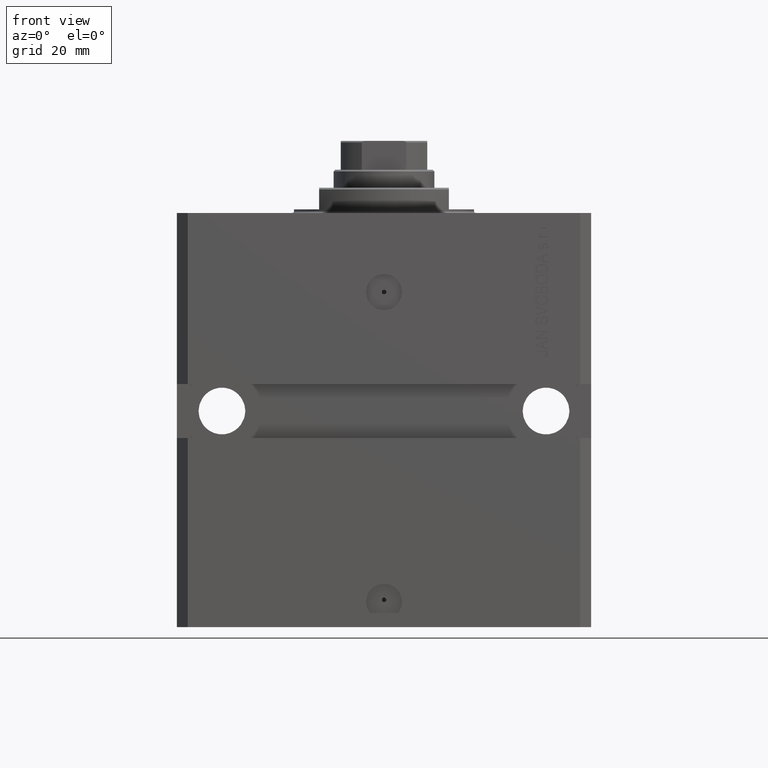
[diagram: clean part render]
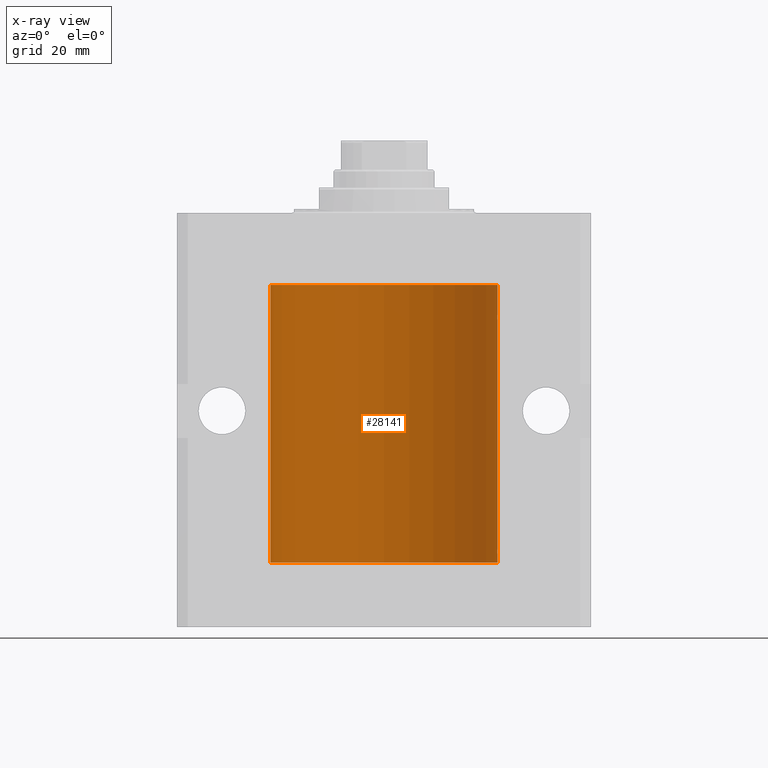
[diagram: x-ray — body ghosted, one internal face saturated and labeled with its STEP entity id]
A machine part, front view, then the same camera in x-ray: the body is ghosted and one INTERNAL B-rep face — a face not visible from any outside direction — is saturated and labeled: STEP entity #28141.
In plain terms, the highlighted cylindrical surface (partial cylindrical patch) has radius 31.5 mm, axis along (0, 0, 1).
Its self-contained STEP definition (entity closure, byte-faithful):
#138 = CARTESIAN_POINT ( 'NONE',  ( 31.49379899281745665, 0.6250000000082825968, -93.99999999999906208 ) ) ;
#686 = CARTESIAN_POINT ( 'NONE',  ( 31.49379899281760231, 0.6250000000003351763, -29.16310352862698352 ) ) ;
#1732 = ORIENTED_EDGE ( 'NONE', *, *, #21806, .T. ) ;
#2864 = CARTESIAN_POINT ( 'NONE',  ( 31.50000000000000000, 0.000000000000000000, -97.09999999999999432 ) ) ;
#3204 = CARTESIAN_POINT ( 'NONE',  ( 31.49379899281760942, 0.6250000000003405054, -94.16310352862701905 ) ) ;
#3294 = DIRECTION ( 'NONE',  ( -0.000000000000000000, -0.000000000000000000, 1.000000000000000000 ) ) ;
#3820 = ORIENTED_EDGE ( 'NONE', *, *, #14156, .F. ) ;
#3973 = VERTEX_POINT ( 'NONE', #38371 ) ;
#4001 = AXIS2_PLACEMENT_3D ( 'NONE', #32444, #36395, #24817 ) ;
#4379 = CARTESIAN_POINT ( 'NONE',  ( 31.49966575203784558, 0.1636755595825546972, -29.60873030821186802 ) ) ;
#5325 = CARTESIAN_POINT ( 'NONE',  ( 31.49379899281762363, 0.6249999999996151967, -28.83697036533062885 ) ) ;
#6488 = CYLINDRICAL_SURFACE ( 'NONE', #19932, 31.50000000000000000 ) ;
#6574 = VERTEX_POINT ( 'NONE', #11835 ) ;
#7714 = CARTESIAN_POINT ( 'NONE',  ( 31.50000000000000000, 0.000000000000000000, -97.09999999999999432 ) ) ;
#7747 = ORIENTED_EDGE ( 'NONE', *, *, #22959, .T. ) ;
#8036 = CARTESIAN_POINT ( 'NONE',  ( 31.49966575203785268, 0.1636755595825563903, -94.60873030821187513 ) ) ;
#9131 = EDGE_CURVE ( 'NONE', #12017, #47261, #31120, .T. ) ;
#11588 = CARTESIAN_POINT ( 'NONE',  ( 31.49379899281745665, 0.6250000000082756024, -28.99999999999905853 ) ) ;
#11835 = CARTESIAN_POINT ( 'NONE',  ( 31.50000000000006395, 3.442404531757459093E-13, -28.37499999999677058 ) ) ;
#12017 = VERTEX_POINT ( 'NONE', #7714 ) ;
#12428 = CARTESIAN_POINT ( 'NONE',  ( 31.49526225382467359, 0.5586305680866429091, -93.67476160622148029 ) ) ;
#12719 = CARTESIAN_POINT ( 'NONE',  ( 31.49527883250257432, 0.5574151849338060405, -29.32638608454755058 ) ) ;
#12945 = CARTESIAN_POINT ( 'NONE',  ( 31.50000000000006395, 3.442404531757459093E-13, -28.37499999999677058 ) ) ;
#14032 = VECTOR ( 'NONE', #41520, 1000.000000000000000 ) ;
#14120 = DIRECTION ( 'NONE',  ( 0.000000000000000000, 0.000000000000000000, 1.000000000000000000 ) ) ;
#14156 = EDGE_CURVE ( 'NONE', #47261, #3973, #15202, .T. ) ;
#14293 = DIRECTION ( 'NONE',  ( -0.000000000000000000, -0.000000000000000000, 1.000000000000000000 ) ) ;
#14607 = CARTESIAN_POINT ( 'NONE',  ( 31.50000000000000000, -1.286676774952591455E-15, -29.62500000000000000 ) ) ;
#14856 = EDGE_CURVE ( 'NONE', #12017, #47184, #15808, .T. ) ;
#14876 = FACE_OUTER_BOUND ( 'NONE', #37887, .T. ) ;
#15202 = LINE ( 'NONE', #30195, #14032 ) ;
#15808 = LINE ( 'NONE', #34517, #26607 ) ;
#16131 = CARTESIAN_POINT ( 'NONE',  ( 31.49379899281762363, 0.6249999999996236344, -93.83697036533062885 ) ) ;
#17955 = EDGE_CURVE ( 'NONE', #38823, #6574, #44016, .T. ) ;
#18178 = VECTOR ( 'NONE', #33638, 1000.000000000000000 ) ;
#18644 = VERTEX_POINT ( 'NONE', #43498 ) ;
#19256 = DIRECTION ( 'NONE',  ( -0.000000000000000000, -0.000000000000000000, 1.000000000000000000 ) ) ;
#19372 = CARTESIAN_POINT ( 'NONE',  ( 31.49851501686590893, 0.3150934959385818801, -94.54594721883859165 ) ) ;
#19932 = AXIS2_PLACEMENT_3D ( 'NONE', #29375, #3294, #47857 ) ;
#20642 = EDGE_CURVE ( 'NONE', #48075, #3973, #29923, .T. ) ;
#21190 = CARTESIAN_POINT ( 'NONE',  ( 31.50000000000000000, 0.000000000000000000, -97.09999999999999432 ) ) ;
#21806 = EDGE_CURVE ( 'NONE', #44051, #38823, #36699, .T. ) ;
#21932 = CARTESIAN_POINT ( 'NONE',  ( 31.50000000000000000, -2.492939093807799249E-15, -94.62500000000000000 ) ) ;
#21967 = EDGE_CURVE ( 'NONE', #18644, #44051, #29686, .T. ) ;
#22959 = EDGE_CURVE ( 'NONE', #48616, #18644, #35418, .T. ) ;
#23276 = CARTESIAN_POINT ( 'NONE',  ( 31.50000000000006395, 3.442404755096224483E-13, -93.37499999999675993 ) ) ;
#24817 = DIRECTION ( 'NONE',  ( 1.000000000000000000, 0.000000000000000000, 0.000000000000000000 ) ) ;
#25015 = ORIENTED_EDGE ( 'NONE', *, *, #9131, .F. ) ;
#26607 = VECTOR ( 'NONE', #19256, 1000.000000000000000 ) ;
#27499 = CARTESIAN_POINT ( 'NONE',  ( 31.49851501686590893, 0.3150934959385772727, -29.54594721883858099 ) ) ;
#28141 = ADVANCED_FACE ( 'NONE', ( #14876 ), #6488, .F. ) ;
#29375 = CARTESIAN_POINT ( 'NONE',  ( 0.000000000000000000, 0.000000000000000000, -97.09999999999999432 ) ) ;
#29394 = CARTESIAN_POINT ( 'NONE',  ( 31.50000000000000000, 0.000000000000000000, -20.00000000000000355 ) ) ;
#29686 = LINE ( 'NONE', #2864, #18178 ) ;
#29923 = CIRCLE ( 'NONE', #4001, 31.50000000000000000 ) ;
#30055 = ORIENTED_EDGE ( 'NONE', *, *, #21967, .T. ) ;
#30181 = ORIENTED_EDGE ( 'NONE', *, *, #17955, .T. ) ;
#30195 = CARTESIAN_POINT ( 'NONE',  ( -31.50000000000000000, 3.857637417314162689E-15, -97.09999999999999432 ) ) ;
#31120 = CIRCLE ( 'NONE', #44491, 31.50000000000000000 ) ;
#32444 = CARTESIAN_POINT ( 'NONE',  ( 0.000000000000000000, 0.000000000000000000, -20.00000000000000355 ) ) ;
#32837 = ORIENTED_EDGE ( 'NONE', *, *, #46815, .T. ) ;
#33091 = CARTESIAN_POINT ( 'NONE',  ( 31.50000000000000000, -2.492939093807799249E-15, -94.62500000000000000 ) ) ;
#33638 = DIRECTION ( 'NONE',  ( -0.000000000000000000, -0.000000000000000000, 1.000000000000000000 ) ) ;
#34143 = CARTESIAN_POINT ( 'NONE',  ( 31.50000000000000000, 0.08261130139621999935, -94.62499999999998579 ) ) ;
#34168 = EDGE_CURVE ( 'NONE', #47184, #48616, #40633, .T. ) ;
#34394 = CARTESIAN_POINT ( 'NONE',  ( 31.49379899281745665, 0.6250000000082825968, -93.99999999999906208 ) ) ;
#34418 = CARTESIAN_POINT ( 'NONE',  ( 31.50000000000000711, 0.08261130139621915280, -29.62499999999999289 ) ) ;
#34478 = VECTOR ( 'NONE', #14293, 1000.000000000000000 ) ;
#34517 = CARTESIAN_POINT ( 'NONE',  ( 31.50000000000000000, 0.000000000000000000, -97.09999999999999432 ) ) ;
#35418 = B_SPLINE_CURVE_WITH_KNOTS ( 'NONE', 3,
 ( #138, #16131, #12428, #45894, #38997, #23276 ),
 .UNSPECIFIED., .F., .F.,
 ( 4, 2, 4 ),
 ( 0.0009772631991206588969, 0.001465673424414194563, 0.001954083649707730446 ),
 .UNSPECIFIED. ) ;
#36395 = DIRECTION ( 'NONE',  ( 0.000000000000000000, 0.000000000000000000, 1.000000000000000000 ) ) ;
#36699 = B_SPLINE_CURVE_WITH_KNOTS ( 'NONE', 3,
 ( #45479, #34418, #4379, #27499, #38811, #12719, #686, #42494 ),
 .UNSPECIFIED., .F., .F.,
 ( 4, 2, 2, 4 ),
 ( 1.824539386392990385E-18, 0.0002443157997801608753, 0.0004886315995603199075, 0.0009772631991206452359 ),
 .UNSPECIFIED. ) ;
#36931 = CARTESIAN_POINT ( 'NONE',  ( 31.49770674525946390, 0.3844410175904657834, -94.49948347834465778 ) ) ;
#37244 = DIRECTION ( 'NONE',  ( 1.000000000000000000, 0.000000000000000000, 0.000000000000000000 ) ) ;
#37355 = CARTESIAN_POINT ( 'NONE',  ( 31.49379899281745665, 0.6250000000082825968, -93.99999999999906208 ) ) ;
#37887 = EDGE_LOOP ( 'NONE', ( #3820, #25015, #43668, #47233, #7747, #30055, #1732, #30181, #32837, #43590 ) ) ;
#38371 = CARTESIAN_POINT ( 'NONE',  ( -31.50000000000000000, 3.857637417314162689E-15, -20.00000000000000355 ) ) ;
#38797 = CARTESIAN_POINT ( 'NONE',  ( 31.49853627283156499, 0.3253078817183363558, -28.44140989403645747 ) ) ;
#38811 = CARTESIAN_POINT ( 'NONE',  ( 31.49770674525947101, 0.3844410175904570126, -29.49948347834465068 ) ) ;
#38823 = VERTEX_POINT ( 'NONE', #11588 ) ;
#38997 = CARTESIAN_POINT ( 'NONE',  ( 31.50000000000000000, 0.1631291455194407158, -93.37500000000017053 ) ) ;
#39039 = CARTESIAN_POINT ( 'NONE',  ( 31.50000000000000000, 0.1631291455194386619, -28.37500000000015277 ) ) ;
#40633 = B_SPLINE_CURVE_WITH_KNOTS ( 'NONE', 3,
 ( #21932, #34143, #8036, #19372, #36931, #44548, #3204, #34394 ),
 .UNSPECIFIED., .F., .F.,
 ( 4, 2, 2, 4 ),
 ( 2.422664849601941982E-18, 0.0002443157997801665674, 0.0004886315995603306411, 0.0009772631991206588969 ),
 .UNSPECIFIED. ) ;
#40923 = CARTESIAN_POINT ( 'NONE',  ( 0.000000000000000000, 0.000000000000000000, -97.09999999999999432 ) ) ;
#41520 = DIRECTION ( 'NONE',  ( -0.000000000000000000, -0.000000000000000000, 1.000000000000000000 ) ) ;
#42243 = CARTESIAN_POINT ( 'NONE',  ( 31.49379899281745665, 0.6250000000082756024, -28.99999999999905853 ) ) ;
#42480 = CARTESIAN_POINT ( 'NONE',  ( 31.49526225382467359, 0.5586305680866376910, -28.67476160622149806 ) ) ;
#42494 = CARTESIAN_POINT ( 'NONE',  ( 31.49379899281745665, 0.6250000000082756024, -28.99999999999905853 ) ) ;
#43286 = CARTESIAN_POINT ( 'NONE',  ( -31.50000000000000000, 3.857637417314162689E-15, -97.09999999999999432 ) ) ;
#43498 = CARTESIAN_POINT ( 'NONE',  ( 31.50000000000006395, 3.442404755096224483E-13, -93.37499999999675993 ) ) ;
#43590 = ORIENTED_EDGE ( 'NONE', *, *, #20642, .T. ) ;
#43668 = ORIENTED_EDGE ( 'NONE', *, *, #14856, .T. ) ;
#43806 = LINE ( 'NONE', #21190, #34478 ) ;
#44016 = B_SPLINE_CURVE_WITH_KNOTS ( 'NONE', 3,
 ( #42243, #5325, #42480, #38797, #39039, #12945 ),
 .UNSPECIFIED., .F., .F.,
 ( 4, 2, 4 ),
 ( 0.0009772631991206452359, 0.001465673424414174614, 0.001954083649707703992 ),
 .UNSPECIFIED. ) ;
#44051 = VERTEX_POINT ( 'NONE', #14607 ) ;
#44491 = AXIS2_PLACEMENT_3D ( 'NONE', #40923, #14120, #37244 ) ;
#44548 = CARTESIAN_POINT ( 'NONE',  ( 31.49527883250257432, 0.5574151849338155884, -94.32638608454756479 ) ) ;
#45479 = CARTESIAN_POINT ( 'NONE',  ( 31.50000000000000000, -1.286676774952591455E-15, -29.62500000000000000 ) ) ;
#45894 = CARTESIAN_POINT ( 'NONE',  ( 31.49853627283156499, 0.3253078817183396310, -93.44140989403643971 ) ) ;
#46815 = EDGE_CURVE ( 'NONE', #6574, #48075, #43806, .T. ) ;
#47184 = VERTEX_POINT ( 'NONE', #33091 ) ;
#47233 = ORIENTED_EDGE ( 'NONE', *, *, #34168, .T. ) ;
#47261 = VERTEX_POINT ( 'NONE', #43286 ) ;
#47857 = DIRECTION ( 'NONE',  ( 1.000000000000000000, 0.000000000000000000, 0.000000000000000000 ) ) ;
#48075 = VERTEX_POINT ( 'NONE', #29394 ) ;
#48616 = VERTEX_POINT ( 'NONE', #37355 ) ;